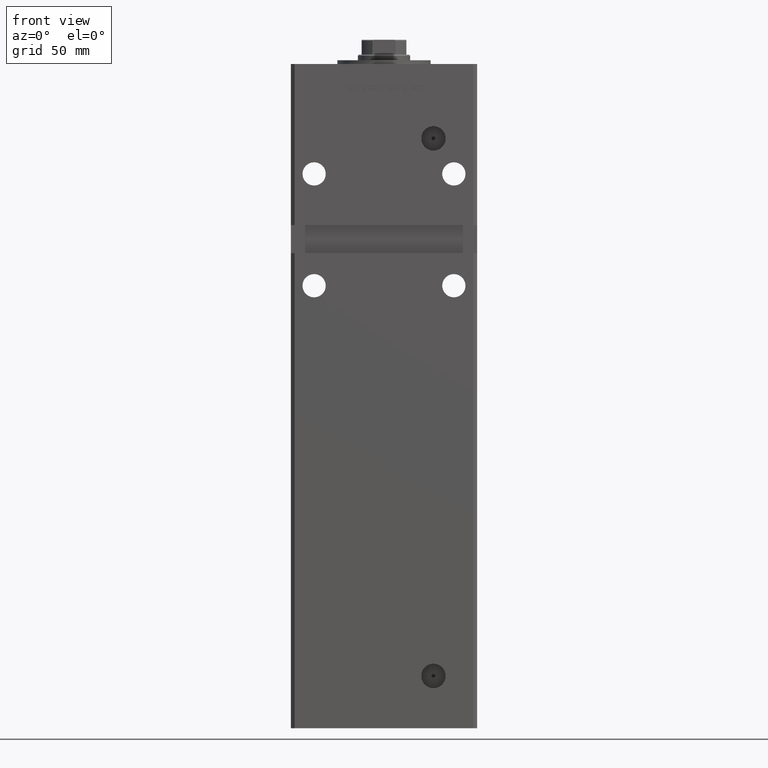
[diagram: clean part render]
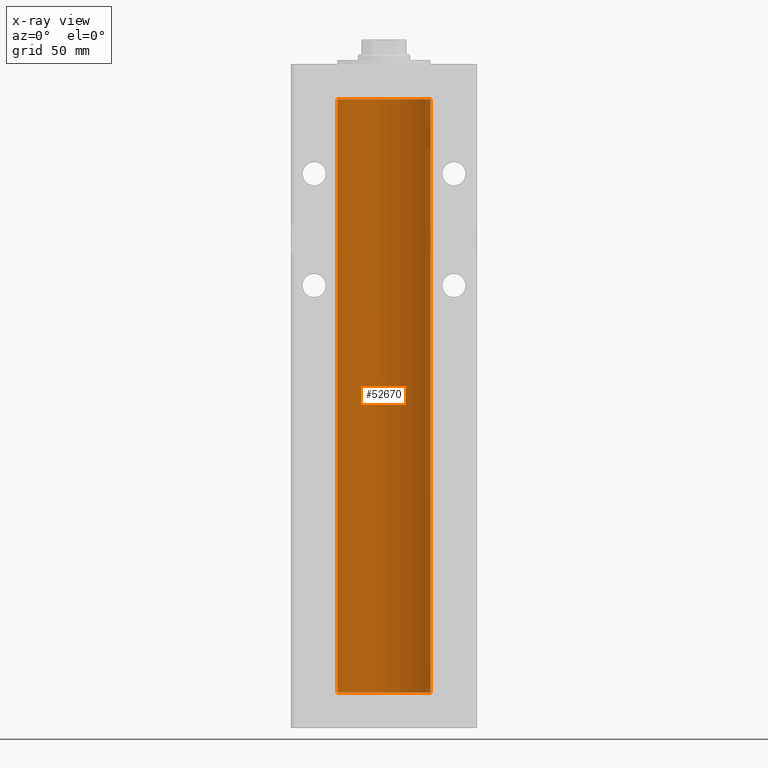
[diagram: x-ray — body ghosted, one internal face saturated and labeled with its STEP entity id]
A machine part, front view, then the same camera in x-ray: the body is ghosted and one INTERNAL B-rep face — a face not visible from any outside direction — is saturated and labeled: STEP entity #52670.
In plain terms, the highlighted cylindrical surface (partial cylindrical patch) has radius 25 mm, axis along (-0, -0, -1).
Its self-contained STEP definition (entity closure, byte-faithful):
#525 = EDGE_CURVE ( 'NONE', #28733, #21144, #52906, .T. ) ;
#6453 = ORIENTED_EDGE ( 'NONE', *, *, #525, .T. ) ;
#6902 = AXIS2_PLACEMENT_3D ( 'NONE', #45505, #16490, #37194 ) ;
#8370 = AXIS2_PLACEMENT_3D ( 'NONE', #20217, #34431, #38457 ) ;
#9534 = DIRECTION ( 'NONE',  ( -1.000000000000000000, 0.000000000000000000, 0.000000000000000000 ) ) ;
#11277 = ORIENTED_EDGE ( 'NONE', *, *, #33773, .F. ) ;
#15370 = LINE ( 'NONE', #47352, #34124 ) ;
#16090 = CARTESIAN_POINT ( 'NONE',  ( -25.00000000000000000, 0.000000000000000000, 318.5000000000000000 ) ) ;
#16490 = DIRECTION ( 'NONE',  ( -0.000000000000000000, 0.000000000000000000, 1.000000000000000000 ) ) ;
#19840 = CARTESIAN_POINT ( 'NONE',  ( 25.00000000000000000, 3.061616997868383043E-15, 0.000000000000000000 ) ) ;
#20217 = CARTESIAN_POINT ( 'NONE',  ( 0.000000000000000000, 0.000000000000000000, 0.000000000000000000 ) ) ;
#21144 = VERTEX_POINT ( 'NONE', #40954 ) ;
#23236 = CIRCLE ( 'NONE', #6902, 25.00000000000000000 ) ;
#24425 = ORIENTED_EDGE ( 'NONE', *, *, #42219, .T. ) ;
#25881 = CARTESIAN_POINT ( 'NONE',  ( 25.00000000000000000, 3.061616997868383043E-15, 318.5000000000000000 ) ) ;
#26207 = CARTESIAN_POINT ( 'NONE',  ( 0.000000000000000000, 0.000000000000000000, 318.5000000000000000 ) ) ;
#26810 = AXIS2_PLACEMENT_3D ( 'NONE', #26207, #30775, #9534 ) ;
#28733 = VERTEX_POINT ( 'NONE', #50418 ) ;
#30775 = DIRECTION ( 'NONE',  ( -0.000000000000000000, -0.000000000000000000, -1.000000000000000000 ) ) ;
#31454 = VERTEX_POINT ( 'NONE', #19840 ) ;
#32086 = EDGE_LOOP ( 'NONE', ( #11277, #24425, #6453, #46523 ) ) ;
#33773 = EDGE_CURVE ( 'NONE', #53061, #31454, #15370, .T. ) ;
#34124 = VECTOR ( 'NONE', #43070, 1000.000000000000000 ) ;
#34431 = DIRECTION ( 'NONE',  ( -0.000000000000000000, 0.000000000000000000, 1.000000000000000000 ) ) ;
#34625 = EDGE_CURVE ( 'NONE', #31454, #21144, #51301, .T. ) ;
#37194 = DIRECTION ( 'NONE',  ( 1.000000000000000000, 0.000000000000000000, 0.000000000000000000 ) ) ;
#38457 = DIRECTION ( 'NONE',  ( 1.000000000000000000, 0.000000000000000000, 0.000000000000000000 ) ) ;
#40201 = VECTOR ( 'NONE', #44312, 1000.000000000000000 ) ;
#40291 = CYLINDRICAL_SURFACE ( 'NONE', #26810, 25.00000000000000000 ) ;
#40954 = CARTESIAN_POINT ( 'NONE',  ( -25.00000000000000000, 0.000000000000000000, 0.000000000000000000 ) ) ;
#42219 = EDGE_CURVE ( 'NONE', #53061, #28733, #23236, .T. ) ;
#43070 = DIRECTION ( 'NONE',  ( -0.000000000000000000, -0.000000000000000000, -1.000000000000000000 ) ) ;
#44301 = FACE_OUTER_BOUND ( 'NONE', #32086, .T. ) ;
#44312 = DIRECTION ( 'NONE',  ( -0.000000000000000000, -0.000000000000000000, -1.000000000000000000 ) ) ;
#45505 = CARTESIAN_POINT ( 'NONE',  ( 0.000000000000000000, 0.000000000000000000, 318.5000000000000000 ) ) ;
#46523 = ORIENTED_EDGE ( 'NONE', *, *, #34625, .F. ) ;
#47352 = CARTESIAN_POINT ( 'NONE',  ( 25.00000000000000000, 3.061616997868383043E-15, 318.5000000000000000 ) ) ;
#50418 = CARTESIAN_POINT ( 'NONE',  ( -25.00000000000000000, 0.000000000000000000, 318.5000000000000000 ) ) ;
#51301 = CIRCLE ( 'NONE', #8370, 25.00000000000000000 ) ;
#52670 = ADVANCED_FACE ( 'NONE', ( #44301 ), #40291, .F. ) ;
#52906 = LINE ( 'NONE', #16090, #40201 ) ;
#53061 = VERTEX_POINT ( 'NONE', #25881 ) ;